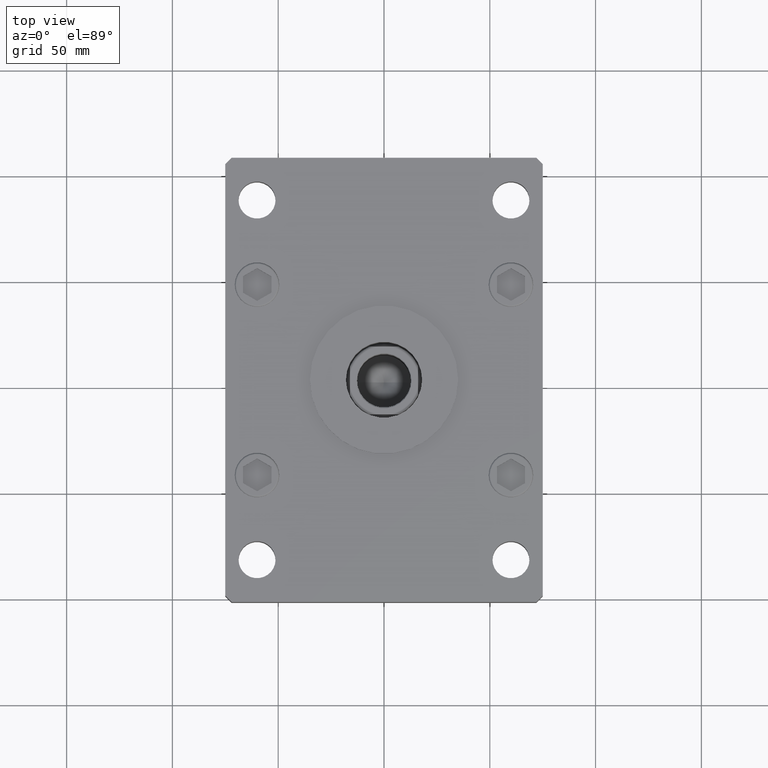
[diagram: clean part render]
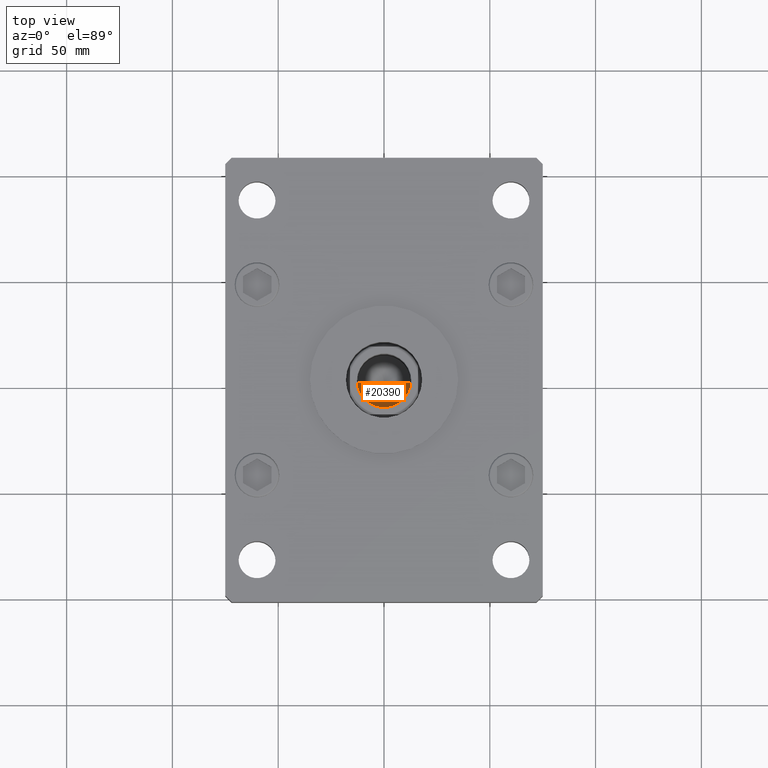
[diagram: same view with one face highlighted and labeled with its STEP entity id]
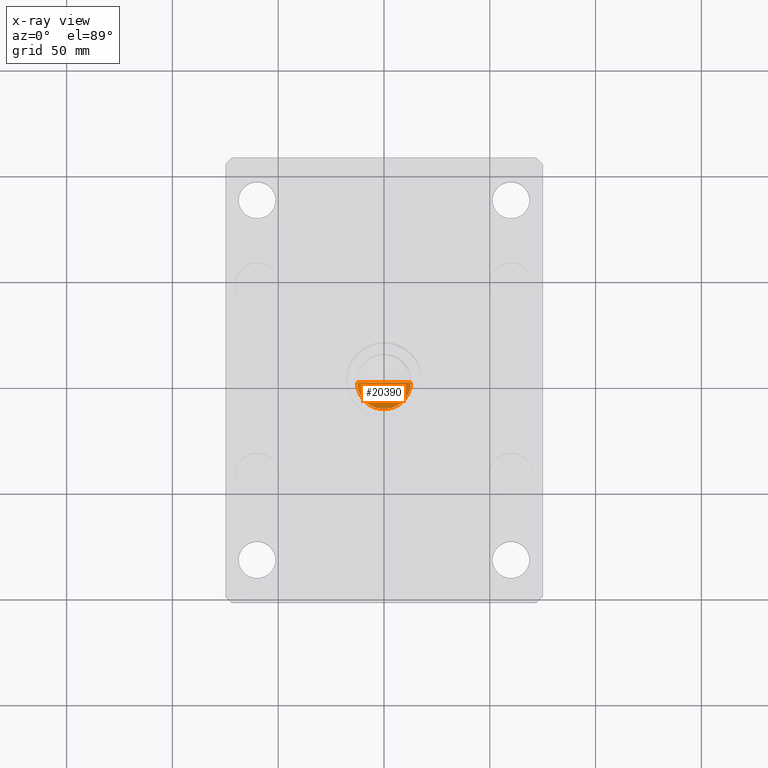
[diagram: x-ray of the same camera — body ghosted, the highlighted face saturated]
A machine part, top view. The second image highlights one B-rep face of the part: STEP entity #20390.
The next image is the same camera in x-ray: the body ghosted, the highlighted face saturated — about 8% of this face is hidden behind the body in this view.
In plain terms, the highlighted conical surface has half-angle 59 deg.
Its self-contained STEP definition (entity closure, byte-faithful):
#831 = EDGE_CURVE ( 'NONE', #29719, #27285, #40959, .T. ) ;
#1441 = EDGE_LOOP ( 'NONE', ( #41038, #45185, #18271 ) ) ;
#4007 = CARTESIAN_POINT ( 'NONE',  ( 12.74999999999999112, 0.000000000000000000, 128.0000000000000000 ) ) ;
#5255 = VECTOR ( 'NONE', #17811, 1000.000000000000000 ) ;
#8823 = DIRECTION ( 'NONE',  ( -0.000000000000000000, -0.000000000000000000, 1.000000000000000000 ) ) ;
#9203 = DIRECTION ( 'NONE',  ( -0.000000000000000000, -0.000000000000000000, 1.000000000000000000 ) ) ;
#12462 = DIRECTION ( 'NONE',  ( 1.000000000000000000, 0.000000000000000000, 0.000000000000000000 ) ) ;
#16148 = DIRECTION ( 'NONE',  ( 1.000000000000000000, 0.000000000000000000, 0.000000000000000000 ) ) ;
#16295 = DIRECTION ( 'NONE',  ( -0.8571673007021122226, 1.049727191138618572E-16, 0.5150380749100542666 ) ) ;
#17599 = CARTESIAN_POINT ( 'NONE',  ( 0.000000000000000000, 0.000000000000000000, 128.0000000000000000 ) ) ;
#17811 = DIRECTION ( 'NONE',  ( 0.8571673007021122226, 0.000000000000000000, 0.5150380749100542666 ) ) ;
#18271 = ORIENTED_EDGE ( 'NONE', *, *, #38637, .T. ) ;
#20390 = ADVANCED_FACE ( 'NONE', ( #41451 ), #36601, .F. ) ;
#27095 = AXIS2_PLACEMENT_3D ( 'NONE', #17599, #9203, #12462 ) ;
#27285 = VERTEX_POINT ( 'NONE', #35670 ) ;
#27463 = AXIS2_PLACEMENT_3D ( 'NONE', #45932, #8823, #16148 ) ;
#29719 = VERTEX_POINT ( 'NONE', #53354 ) ;
#32838 = CARTESIAN_POINT ( 'NONE',  ( -12.74999999999999112, 1.561424668912874125E-15, 128.0000000000000000 ) ) ;
#35653 = VECTOR ( 'NONE', #16295, 1000.000000000000000 ) ;
#35670 = CARTESIAN_POINT ( 'NONE',  ( -12.74999999999999112, 1.561424668912874125E-15, 128.0000000000000000 ) ) ;
#36601 = CONICAL_SURFACE ( 'NONE', #27095, 12.74999999999999112, 1.029744258676654312 ) ;
#38408 = LINE ( 'NONE', #51414, #5255 ) ;
#38637 = EDGE_CURVE ( 'NONE', #27285, #40747, #50836, .T. ) ;
#40747 = VERTEX_POINT ( 'NONE', #4007 ) ;
#40959 = LINE ( 'NONE', #32838, #35653 ) ;
#41038 = ORIENTED_EDGE ( 'NONE', *, *, #53617, .F. ) ;
#41451 = FACE_OUTER_BOUND ( 'NONE', #1441, .T. ) ;
#45185 = ORIENTED_EDGE ( 'NONE', *, *, #831, .T. ) ;
#45932 = CARTESIAN_POINT ( 'NONE',  ( 0.000000000000000000, 0.000000000000000000, 128.0000000000000000 ) ) ;
#50836 = CIRCLE ( 'NONE', #27463, 12.74999999999999112 ) ;
#51414 = CARTESIAN_POINT ( 'NONE',  ( 12.74999999999999112, 0.000000000000000000, 128.0000000000000000 ) ) ;
#53354 = CARTESIAN_POINT ( 'NONE',  ( -1.307202896762960287E-14, 0.000000000000000000, 120.3390271073986213 ) ) ;
#53617 = EDGE_CURVE ( 'NONE', #29719, #40747, #38408, .T. ) ;